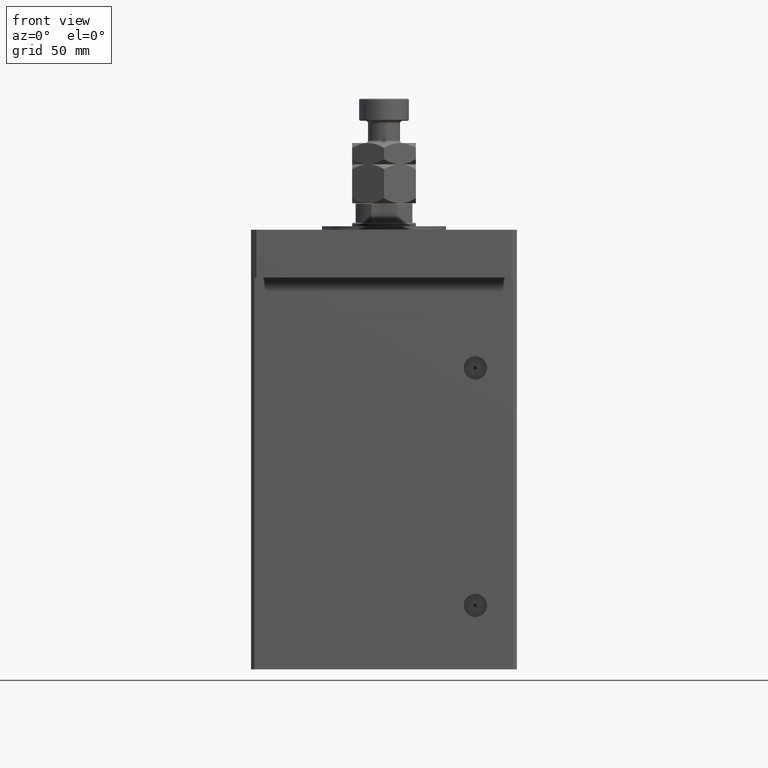
[diagram: clean part render]
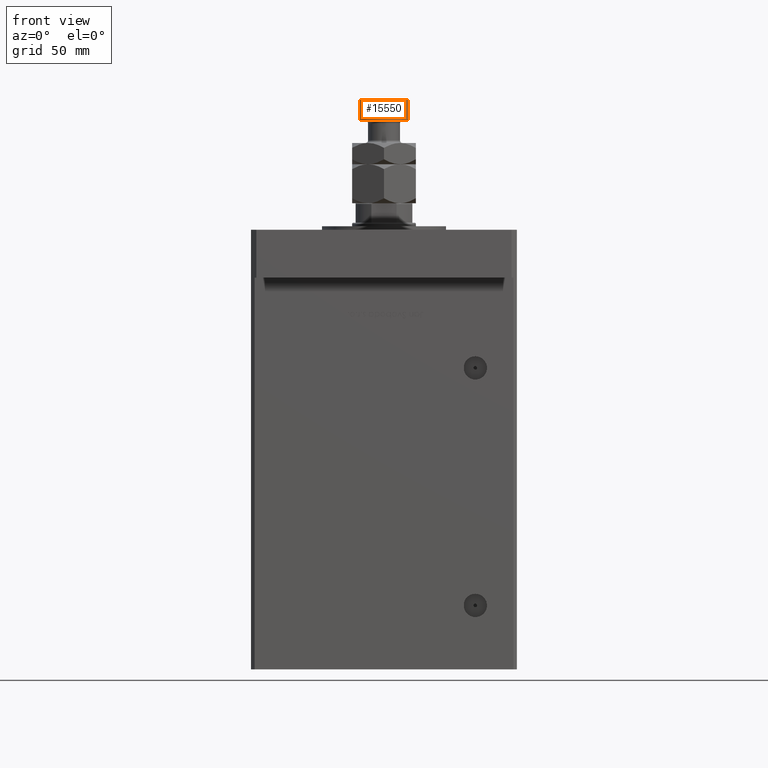
[diagram: same view with one face highlighted and labeled with its STEP entity id]
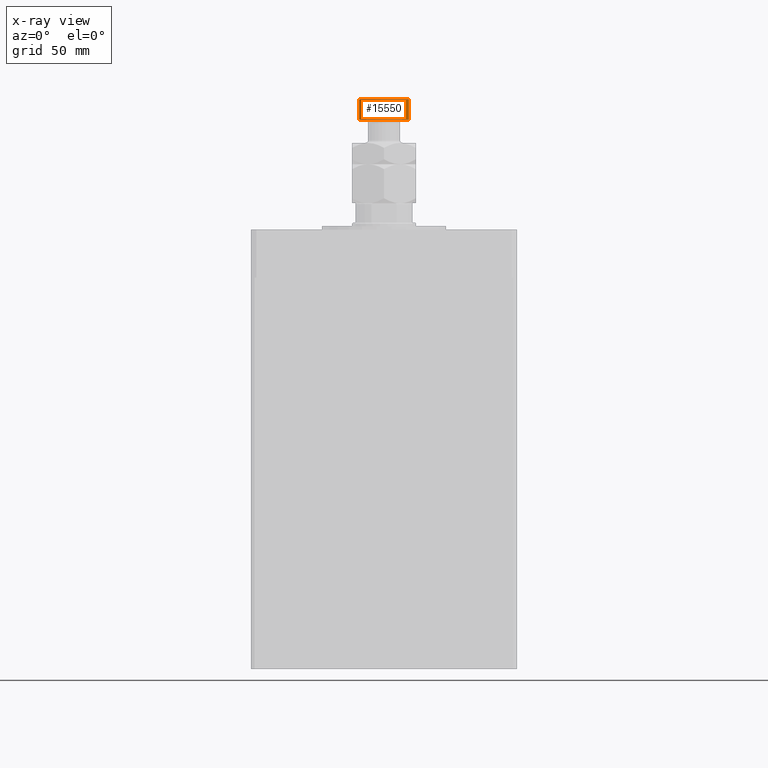
[diagram: x-ray of the same camera — body ghosted, the highlighted face saturated]
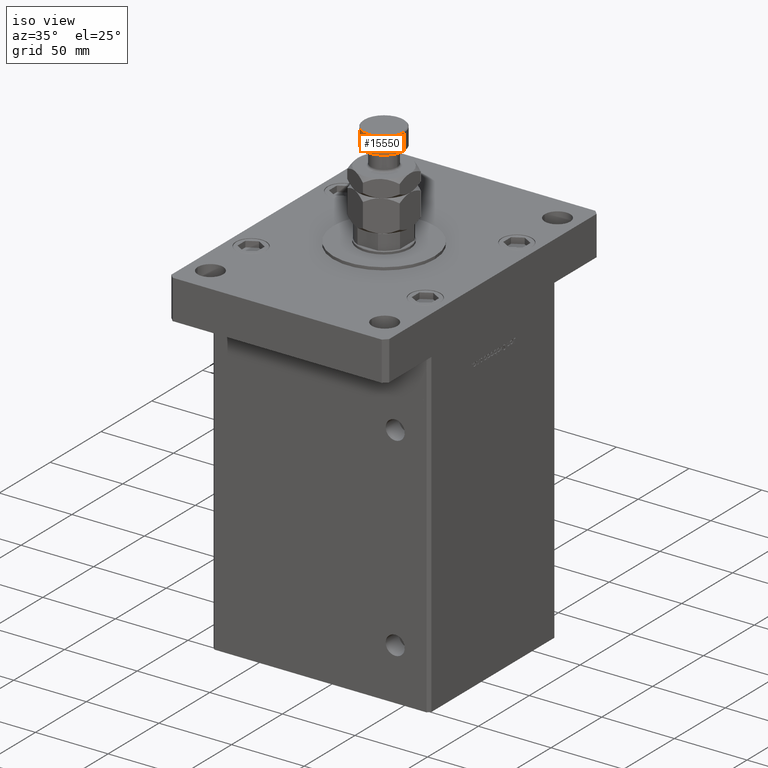
[diagram: same view with one face highlighted and labeled with its STEP entity id]
A machine part, front view. The second image highlights one B-rep face of the part: STEP entity #15550.
The next image is the same camera in x-ray: the body ghosted, the highlighted face saturated — about 0% of this face is hidden behind the body in this view.
A second angle (iso view) of the same face is appended — the face is thin or edge-on in the first view.
In plain terms, the highlighted cylindrical surface (edge-blend (fillet) strip) has radius 14 mm, axis along (-0, -0, -1).
Its self-contained STEP definition (entity closure, byte-faithful):
#407 = CARTESIAN_POINT ( 'NONE',  ( 0.000000000000000000, 0.000000000000000000, 59.00000000000000000 ) ) ;
#612 = DIRECTION ( 'NONE',  ( -0.000000000000000000, -0.000000000000000000, -1.000000000000000000 ) ) ;
#3645 = ORIENTED_EDGE ( 'NONE', *, *, #25228, .T. ) ;
#4282 = DIRECTION ( 'NONE',  ( 1.000000000000000000, 0.000000000000000000, 0.000000000000000000 ) ) ;
#4355 = CYLINDRICAL_SURFACE ( 'NONE', #40618, 14.00000000000000000 ) ;
#5086 = CARTESIAN_POINT ( 'NONE',  ( -14.00000000000000000, 0.000000000000000000, 59.00000000000000000 ) ) ;
#5506 = ORIENTED_EDGE ( 'NONE', *, *, #11577, .F. ) ;
#11577 = EDGE_CURVE ( 'NONE', #34953, #26992, #19929, .T. ) ;
#11960 = VERTEX_POINT ( 'NONE', #28813 ) ;
#13479 = LINE ( 'NONE', #5086, #31880 ) ;
#14280 = CARTESIAN_POINT ( 'NONE',  ( 14.00000000000000000, 1.714505518806294638E-15, 58.50000000000002132 ) ) ;
#15550 = ADVANCED_FACE ( 'NONE', ( #42642 ), #4355, .T. ) ;
#15774 = CARTESIAN_POINT ( 'NONE',  ( -14.00000000000000000, 0.000000000000000000, 58.50000000000002132 ) ) ;
#17467 = DIRECTION ( 'NONE',  ( -0.000000000000000000, -0.000000000000000000, -1.000000000000000000 ) ) ;
#18584 = VERTEX_POINT ( 'NONE', #15774 ) ;
#19086 = CARTESIAN_POINT ( 'NONE',  ( 14.00000000000000000, 1.714505518806294638E-15, 59.00000000000000000 ) ) ;
#19929 = LINE ( 'NONE', #19086, #52979 ) ;
#21742 = ORIENTED_EDGE ( 'NONE', *, *, #37698, .T. ) ;
#21810 = CARTESIAN_POINT ( 'NONE',  ( 0.000000000000000000, 0.000000000000000000, 46.99999999999998579 ) ) ;
#23418 = AXIS2_PLACEMENT_3D ( 'NONE', #21810, #43593, #31026 ) ;
#25228 = EDGE_CURVE ( 'NONE', #18584, #11960, #13479, .T. ) ;
#26967 = CIRCLE ( 'NONE', #23418, 14.00000000000000000 ) ;
#26992 = VERTEX_POINT ( 'NONE', #43625 ) ;
#28813 = CARTESIAN_POINT ( 'NONE',  ( -14.00000000000000000, 0.000000000000000000, 46.99999999999998579 ) ) ;
#29172 = DIRECTION ( 'NONE',  ( 0.000000000000000000, 0.000000000000000000, -1.000000000000000000 ) ) ;
#30102 = EDGE_LOOP ( 'NONE', ( #5506, #45934, #3645, #21742 ) ) ;
#30947 = AXIS2_PLACEMENT_3D ( 'NONE', #34433, #29172, #4282 ) ;
#31026 = DIRECTION ( 'NONE',  ( 1.000000000000000000, 0.000000000000000000, 0.000000000000000000 ) ) ;
#31880 = VECTOR ( 'NONE', #612, 1000.000000000000000 ) ;
#34433 = CARTESIAN_POINT ( 'NONE',  ( 0.000000000000000000, 0.000000000000000000, 58.50000000000002132 ) ) ;
#34512 = DIRECTION ( 'NONE',  ( -1.000000000000000000, 0.000000000000000000, 0.000000000000000000 ) ) ;
#34953 = VERTEX_POINT ( 'NONE', #14280 ) ;
#37698 = EDGE_CURVE ( 'NONE', #11960, #26992, #26967, .T. ) ;
#40618 = AXIS2_PLACEMENT_3D ( 'NONE', #407, #17467, #34512 ) ;
#42642 = FACE_OUTER_BOUND ( 'NONE', #30102, .T. ) ;
#43593 = DIRECTION ( 'NONE',  ( -0.000000000000000000, -0.000000000000000000, 1.000000000000000000 ) ) ;
#43625 = CARTESIAN_POINT ( 'NONE',  ( 14.00000000000000000, 1.714505518806294638E-15, 46.99999999999998579 ) ) ;
#44796 = DIRECTION ( 'NONE',  ( -0.000000000000000000, -0.000000000000000000, -1.000000000000000000 ) ) ;
#45934 = ORIENTED_EDGE ( 'NONE', *, *, #54872, .T. ) ;
#52979 = VECTOR ( 'NONE', #44796, 1000.000000000000000 ) ;
#54872 = EDGE_CURVE ( 'NONE', #34953, #18584, #55051, .T. ) ;
#55051 = CIRCLE ( 'NONE', #30947, 14.00000000000000000 ) ;